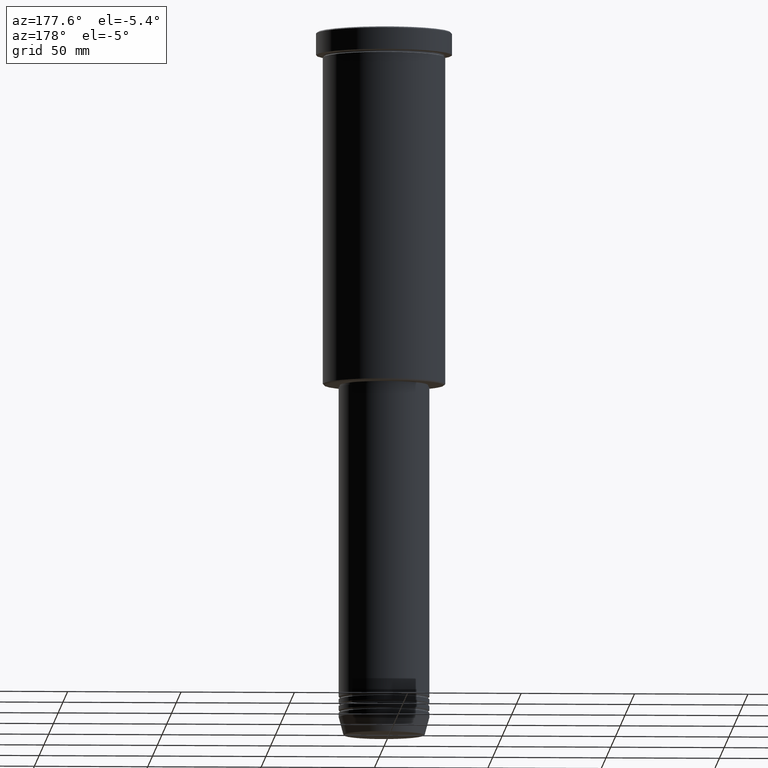
[diagram: clean part render]
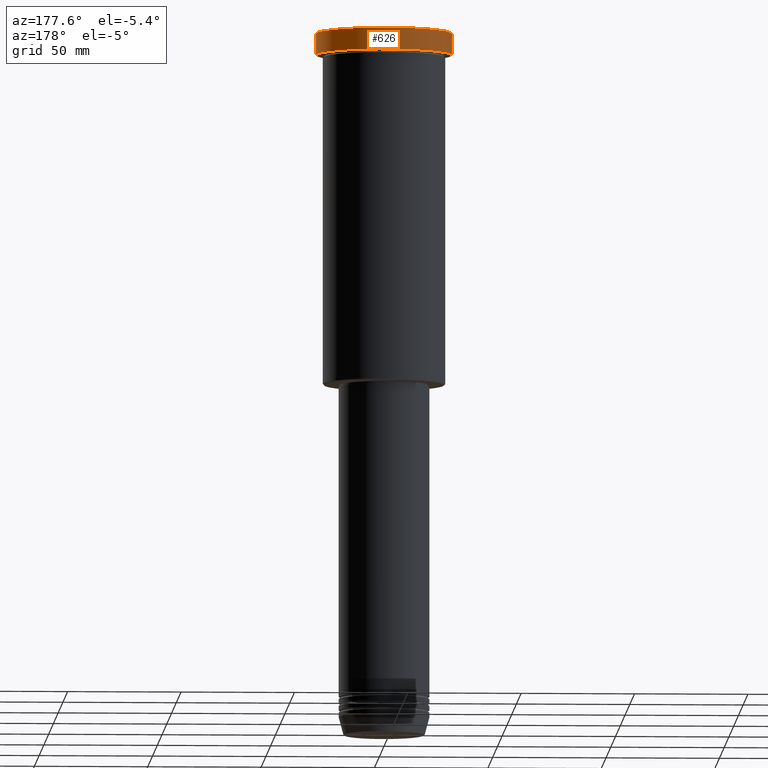
[diagram: same view with one face highlighted and labeled with its STEP entity id]
A machine part, auxiliary view. The second image highlights one B-rep face of the part: STEP entity #626.
In plain terms, the highlighted cylindrical surface (partial cylindrical patch) has radius 30 mm, axis along (-0, -0, 1).
Its self-contained STEP definition (entity closure, byte-faithful):
#3 = EDGE_CURVE ( 'NONE', #993, #32, #1015, .T. ) ;
#32 = VERTEX_POINT ( 'NONE', #992 ) ;
#67 = DIRECTION ( 'NONE',  ( -0.000000000000000000, -0.000000000000000000, 1.000000000000000000 ) ) ;
#115 = CYLINDRICAL_SURFACE ( 'NONE', #480, 30.00000000000000000 ) ;
#167 = CIRCLE ( 'NONE', #246, 30.00000000000000000 ) ;
#222 = CARTESIAN_POINT ( 'NONE',  ( -30.00000000000000000, 3.673940397442059178E-15, -9.999999999999992895 ) ) ;
#246 = AXIS2_PLACEMENT_3D ( 'NONE', #814, #899, #650 ) ;
#254 = ORIENTED_EDGE ( 'NONE', *, *, #3, .F. ) ;
#297 = DIRECTION ( 'NONE',  ( -0.000000000000000000, -0.000000000000000000, 1.000000000000000000 ) ) ;
#325 = DIRECTION ( 'NONE',  ( 1.000000000000000000, 0.000000000000000000, 0.000000000000000000 ) ) ;
#371 = EDGE_CURVE ( 'NONE', #993, #681, #1148, .T. ) ;
#373 = EDGE_CURVE ( 'NONE', #681, #1039, #966, .T. ) ;
#468 = EDGE_CURVE ( 'NONE', #1039, #32, #167, .T. ) ;
#480 = AXIS2_PLACEMENT_3D ( 'NONE', #1120, #297, #1125 ) ;
#519 = DIRECTION ( 'NONE',  ( -0.000000000000000000, -0.000000000000000000, 1.000000000000000000 ) ) ;
#527 = VECTOR ( 'NONE', #916, 1000.000000000000000 ) ;
#626 = ADVANCED_FACE ( 'NONE', ( #1140 ), #115, .T. ) ;
#637 = ORIENTED_EDGE ( 'NONE', *, *, #373, .T. ) ;
#650 = DIRECTION ( 'NONE',  ( 1.000000000000000000, 0.000000000000000000, 0.000000000000000000 ) ) ;
#658 = CARTESIAN_POINT ( 'NONE',  ( -30.00000000000000000, 3.673940397442059178E-15, -0.5000000000000073275 ) ) ;
#681 = VERTEX_POINT ( 'NONE', #222 ) ;
#697 = ORIENTED_EDGE ( 'NONE', *, *, #371, .T. ) ;
#739 = VECTOR ( 'NONE', #67, 1000.000000000000000 ) ;
#749 = CARTESIAN_POINT ( 'NONE',  ( 30.00000000000000000, 0.000000000000000000, 0.000000000000000000 ) ) ;
#814 = CARTESIAN_POINT ( 'NONE',  ( 0.000000000000000000, 0.000000000000000000, -0.5000000000000073275 ) ) ;
#835 = CARTESIAN_POINT ( 'NONE',  ( 30.00000000000000000, 0.000000000000000000, -9.999999999999992895 ) ) ;
#882 = CARTESIAN_POINT ( 'NONE',  ( -30.00000000000000000, 3.673940397442059178E-15, 0.000000000000000000 ) ) ;
#899 = DIRECTION ( 'NONE',  ( 0.000000000000000000, 0.000000000000000000, -1.000000000000000000 ) ) ;
#905 = EDGE_LOOP ( 'NONE', ( #697, #637, #962, #254 ) ) ;
#916 = DIRECTION ( 'NONE',  ( -0.000000000000000000, -0.000000000000000000, 1.000000000000000000 ) ) ;
#962 = ORIENTED_EDGE ( 'NONE', *, *, #468, .T. ) ;
#966 = LINE ( 'NONE', #882, #739 ) ;
#969 = AXIS2_PLACEMENT_3D ( 'NONE', #974, #519, #325 ) ;
#974 = CARTESIAN_POINT ( 'NONE',  ( 0.000000000000000000, 0.000000000000000000, -9.999999999999992895 ) ) ;
#992 = CARTESIAN_POINT ( 'NONE',  ( 30.00000000000000000, 0.000000000000000000, -0.5000000000000073275 ) ) ;
#993 = VERTEX_POINT ( 'NONE', #835 ) ;
#1015 = LINE ( 'NONE', #749, #527 ) ;
#1039 = VERTEX_POINT ( 'NONE', #658 ) ;
#1120 = CARTESIAN_POINT ( 'NONE',  ( 0.000000000000000000, 0.000000000000000000, 0.000000000000000000 ) ) ;
#1125 = DIRECTION ( 'NONE',  ( 1.000000000000000000, 0.000000000000000000, 0.000000000000000000 ) ) ;
#1140 = FACE_OUTER_BOUND ( 'NONE', #905, .T. ) ;
#1148 = CIRCLE ( 'NONE', #969, 30.00000000000000000 ) ;